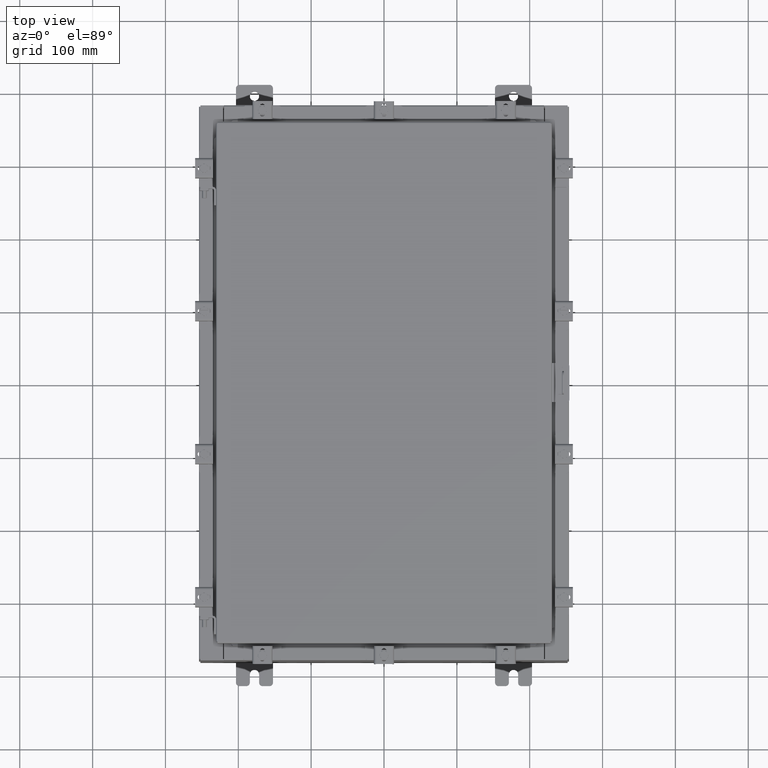
[diagram: clean part render]
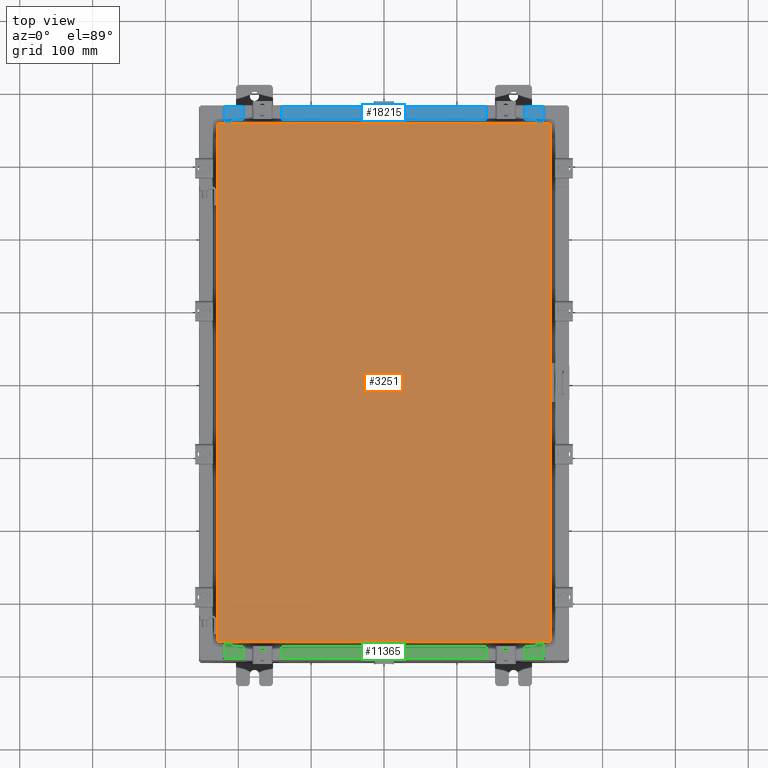
[diagram: same view with three faces highlighted in distinct colors, each labeled with its STEP entity id]
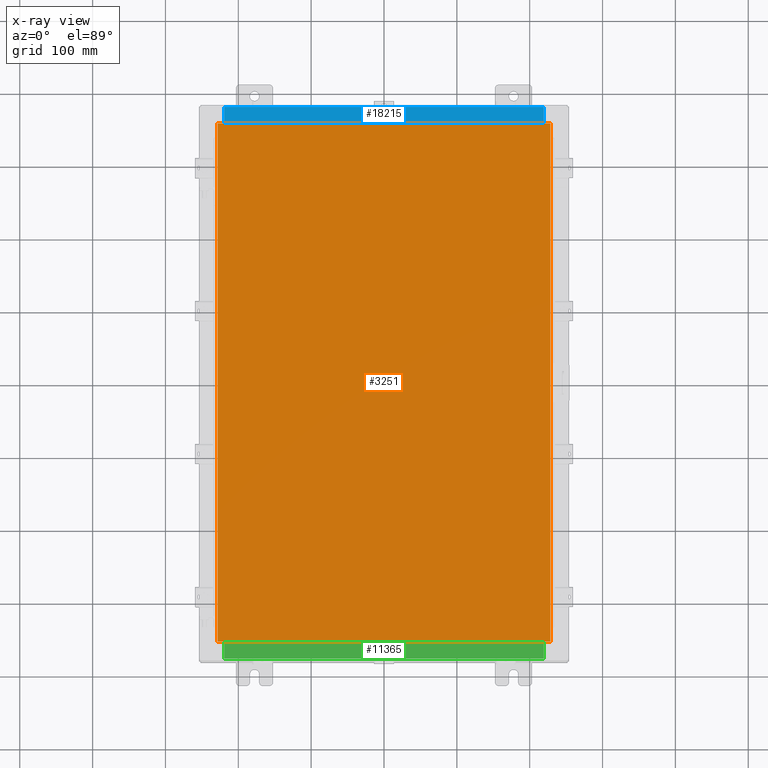
[diagram: x-ray of the same camera — body ghosted, the three highlighted faces saturated]
A machine part, top view with three faces highlighted in distinct colors.
The next image is the same camera in x-ray (body ghosted, the three faces saturated) — at least one of them is partly hidden behind the body in this view.
Their STEP definitions:

[orange] entity #3251 — the highlighted planar face has unit normal (0, 0, -1).
#159 = VERTEX_POINT ( 'NONE', #6784 ) ;
#232 = ORIENTED_EDGE ( 'NONE', *, *, #4258, .T. ) ;
#845 = CARTESIAN_POINT ( 'NONE',  ( -8.990299999999996000, -14.00629999999999800, 1.980589795406590900E-015 ) ) ;
#1777 = CARTESIAN_POINT ( 'NONE',  ( 8.990300000000001300, 14.00629999999999800, -2.048885995248197400E-016 ) ) ;
#2594 = VECTOR ( 'NONE', #5618, 39.37007874015748100 ) ;
#3251 = ADVANCED_FACE ( 'NONE', ( #13918 ), #3923, .F. ) ;
#3428 = EDGE_CURVE ( 'NONE', #18400, #9069, #6907, .T. ) ;
#3923 = PLANE ( 'NONE',  #8067 ) ;
#4258 = EDGE_CURVE ( 'NONE', #159, #18400, #10675, .T. ) ;
#5618 = DIRECTION ( 'NONE',  ( 0.0000000000000000000, 1.000000000000000000, 0.0000000000000000000 ) ) ;
#6090 = CARTESIAN_POINT ( 'NONE',  ( -8.990299999999997700, 14.00630000000000100, -2.048885995248197400E-016 ) ) ;
#6308 = DIRECTION ( 'NONE',  ( 1.000000000000000000, -0.0000000000000000000, -0.0000000000000000000 ) ) ;
#6784 = CARTESIAN_POINT ( 'NONE',  ( -8.990299999999997700, 14.00630000000000100, -2.048885995248197400E-016 ) ) ;
#6878 = VECTOR ( 'NONE', #17832, 39.37007874015748100 ) ;
#6907 = LINE ( 'NONE', #16938, #20657 ) ;
#7417 = CARTESIAN_POINT ( 'NONE',  ( 8.990300000000001300, -14.00629999999999800, -2.048885995248197400E-016 ) ) ;
#7589 = CARTESIAN_POINT ( 'NONE',  ( 0.0000000000000000000, 0.0000000000000000000, 0.0000000000000000000 ) ) ;
#7889 = LINE ( 'NONE', #7417, #2594 ) ;
#8067 = AXIS2_PLACEMENT_3D ( 'NONE', #7589, #20108, #9384 ) ;
#9069 = VERTEX_POINT ( 'NONE', #13063 ) ;
#9384 = DIRECTION ( 'NONE',  ( -1.000000000000000000, 0.0000000000000000000, -0.0000000000000000000 ) ) ;
#10675 = LINE ( 'NONE', #6090, #16539 ) ;
#11436 = EDGE_CURVE ( 'NONE', #21253, #159, #11622, .T. ) ;
#11561 = ORIENTED_EDGE ( 'NONE', *, *, #3428, .T. ) ;
#11622 = LINE ( 'NONE', #1777, #6878 ) ;
#13063 = CARTESIAN_POINT ( 'NONE',  ( 8.990300000000001300, -14.00629999999999800, -2.048885995248197400E-016 ) ) ;
#13918 = FACE_OUTER_BOUND ( 'NONE', #18198, .T. ) ;
#14626 = EDGE_CURVE ( 'NONE', #9069, #21253, #7889, .T. ) ;
#16539 = VECTOR ( 'NONE', #18627, 39.37007874015748100 ) ;
#16938 = CARTESIAN_POINT ( 'NONE',  ( -8.990299999999996000, -14.00629999999999800, 1.963515745446189200E-015 ) ) ;
#17832 = DIRECTION ( 'NONE',  ( -1.000000000000000000, -0.0000000000000000000, -0.0000000000000000000 ) ) ;
#17890 = CARTESIAN_POINT ( 'NONE',  ( 8.990300000000001300, 14.00629999999999800, -2.048885995248197400E-016 ) ) ;
#18102 = ORIENTED_EDGE ( 'NONE', *, *, #14626, .T. ) ;
#18198 = EDGE_LOOP ( 'NONE', ( #11561, #18102, #19416, #232 ) ) ;
#18400 = VERTEX_POINT ( 'NONE', #845 ) ;
#18627 = DIRECTION ( 'NONE',  ( 0.0000000000000000000, -1.000000000000000000, 0.0000000000000000000 ) ) ;
#19416 = ORIENTED_EDGE ( 'NONE', *, *, #11436, .T. ) ;
#20108 = DIRECTION ( 'NONE',  ( 0.0000000000000000000, 0.0000000000000000000, -1.000000000000000000 ) ) ;
#20657 = VECTOR ( 'NONE', #6308, 39.37007874015748100 ) ;
#21253 = VERTEX_POINT ( 'NONE', #17890 ) ;

[blue] entity #18215 — the highlighted planar face has unit normal (0, 0, 1).
#403 = EDGE_CURVE ( 'NONE', #12069, #13381, #17631, .T. ) ;
#497 = DIRECTION ( 'NONE',  ( -0.0000000000000000000, 1.000000000000000000, -3.566381192773190000E-015 ) ) ;
#5246 = DIRECTION ( 'NONE',  ( -0.0000000000000000000, -1.000000000000000000, 3.566381192773190000E-015 ) ) ;
#5609 = DIRECTION ( 'NONE',  ( 0.0000000000000000000, 3.566381192773190000E-015, 1.000000000000000000 ) ) ;
#7124 = FACE_OUTER_BOUND ( 'NONE', #13557, .T. ) ;
#7393 = CARTESIAN_POINT ( 'NONE',  ( 8.637200000000000000, -1.287299999999999900, 4.000000000000004400 ) ) ;
#7401 = ORIENTED_EDGE ( 'NONE', *, *, #403, .T. ) ;
#8126 = VECTOR ( 'NONE', #19194, 39.37007874015748100 ) ;
#8760 = CARTESIAN_POINT ( 'NONE',  ( 8.637200000000000000, -0.08769999999999965300, 4.000000000000000000 ) ) ;
#8863 = ORIENTED_EDGE ( 'NONE', *, *, #19227, .F. ) ;
#9106 = LINE ( 'NONE', #14128, #13837 ) ;
#10001 = DIRECTION ( 'NONE',  ( -1.000000000000000000, 0.0000000000000000000, 0.0000000000000000000 ) ) ;
#11074 = VECTOR ( 'NONE', #497, 39.37007874015748100 ) ;
#12069 = VERTEX_POINT ( 'NONE', #8760 ) ;
#12481 = EDGE_CURVE ( 'NONE', #12069, #21975, #9106, .T. ) ;
#13122 = AXIS2_PLACEMENT_3D ( 'NONE', #14579, #5609, #18177 ) ;
#13381 = VERTEX_POINT ( 'NONE', #16419 ) ;
#13557 = EDGE_LOOP ( 'NONE', ( #15873, #8863, #22853, #7401 ) ) ;
#13603 = CARTESIAN_POINT ( 'NONE',  ( 8.637200000000000000, -1.287299999999999900, 4.000000000000003600 ) ) ;
#13837 = VECTOR ( 'NONE', #5246, 39.37007874015748100 ) ;
#14128 = CARTESIAN_POINT ( 'NONE',  ( 8.637200000000000000, -1.300299999999999800, 4.000000000000004400 ) ) ;
#14579 = CARTESIAN_POINT ( 'NONE',  ( 0.0000000000000000000, 1.425992975200418500E-014, 4.000000000000000000 ) ) ;
#15614 = EDGE_CURVE ( 'NONE', #20940, #13381, #21206, .T. ) ;
#15873 = ORIENTED_EDGE ( 'NONE', *, *, #15614, .F. ) ;
#16384 = PLANE ( 'NONE',  #13122 ) ;
#16419 = CARTESIAN_POINT ( 'NONE',  ( -8.637200000000000000, -0.08770000000000000000, 4.000000000000000000 ) ) ;
#17631 = LINE ( 'NONE', #18882, #8126 ) ;
#17704 = VECTOR ( 'NONE', #10001, 39.37007874015748100 ) ;
#18177 = DIRECTION ( 'NONE',  ( 0.0000000000000000000, -1.000000000000000000, 3.566381192773190000E-015 ) ) ;
#18215 = ADVANCED_FACE ( 'NONE', ( #7124 ), #16384, .T. ) ;
#18882 = CARTESIAN_POINT ( 'NONE',  ( -2.773851121247567100E-018, -0.08770000000000000000, 4.000000000000000900 ) ) ;
#19194 = DIRECTION ( 'NONE',  ( -1.000000000000000000, 3.162886113166609200E-017, -1.128005754888089100E-031 ) ) ;
#19227 = EDGE_CURVE ( 'NONE', #21975, #20940, #19412, .T. ) ;
#19412 = LINE ( 'NONE', #13603, #17704 ) ;
#20661 = CARTESIAN_POINT ( 'NONE',  ( -8.637200000000000000, -1.287299999999999200, 4.000000000000004400 ) ) ;
#20940 = VERTEX_POINT ( 'NONE', #20661 ) ;
#21206 = LINE ( 'NONE', #21923, #11074 ) ;
#21923 = CARTESIAN_POINT ( 'NONE',  ( -8.637200000000000000, -0.07469999999999973900, 4.000000000000000000 ) ) ;
#21975 = VERTEX_POINT ( 'NONE', #7393 ) ;
#22853 = ORIENTED_EDGE ( 'NONE', *, *, #12481, .F. ) ;

[green] entity #11365 — the highlighted planar face has unit normal (-0, -0, 1).
#262 = CARTESIAN_POINT ( 'NONE',  ( 8.637200000000000000, -1.300299999999999800, 4.000000000000004400 ) ) ;
#277 = CARTESIAN_POINT ( 'NONE',  ( 8.637200000000000000, -0.08769999999999965300, 4.000000000000000000 ) ) ;
#408 = VERTEX_POINT ( 'NONE', #19385 ) ;
#907 = ORIENTED_EDGE ( 'NONE', *, *, #13726, .T. ) ;
#1550 = PLANE ( 'NONE',  #9088 ) ;
#2616 = CARTESIAN_POINT ( 'NONE',  ( 8.637200000000000000, -1.287299999999999900, 4.000000000000004400 ) ) ;
#3288 = FACE_OUTER_BOUND ( 'NONE', #21001, .T. ) ;
#3326 = DIRECTION ( 'NONE',  ( 0.0000000000000000000, 3.566381192773190000E-015, 1.000000000000000000 ) ) ;
#5146 = LINE ( 'NONE', #17257, #18269 ) ;
#5868 = VERTEX_POINT ( 'NONE', #22977 ) ;
#6796 = LINE ( 'NONE', #15250, #19971 ) ;
#7233 = DIRECTION ( 'NONE',  ( -0.0000000000000000000, 1.000000000000000000, -3.566381192773190000E-015 ) ) ;
#9088 = AXIS2_PLACEMENT_3D ( 'NONE', #12195, #3326, #15806 ) ;
#9878 = ORIENTED_EDGE ( 'NONE', *, *, #21350, .F. ) ;
#10349 = ORIENTED_EDGE ( 'NONE', *, *, #13658, .F. ) ;
#11365 = ADVANCED_FACE ( 'NONE', ( #3288 ), #1550, .T. ) ;
#11587 = LINE ( 'NONE', #19776, #21723 ) ;
#11710 = DIRECTION ( 'NONE',  ( -1.000000000000000000, 0.0000000000000000000, 0.0000000000000000000 ) ) ;
#11761 = VERTEX_POINT ( 'NONE', #2616 ) ;
#12195 = CARTESIAN_POINT ( 'NONE',  ( 0.0000000000000000000, 1.425992975200418500E-014, 4.000000000000000000 ) ) ;
#12569 = EDGE_CURVE ( 'NONE', #408, #5868, #11587, .T. ) ;
#13658 = EDGE_CURVE ( 'NONE', #11761, #408, #6796, .T. ) ;
#13726 = EDGE_CURVE ( 'NONE', #19578, #5868, #5146, .T. ) ;
#13968 = VECTOR ( 'NONE', #21692, 39.37007874015748100 ) ;
#14522 = LINE ( 'NONE', #262, #13968 ) ;
#15250 = CARTESIAN_POINT ( 'NONE',  ( 8.637200000000000000, -1.287299999999999900, 4.000000000000003600 ) ) ;
#15806 = DIRECTION ( 'NONE',  ( 0.0000000000000000000, -1.000000000000000000, 3.566381192773190000E-015 ) ) ;
#17257 = CARTESIAN_POINT ( 'NONE',  ( -2.773851121247567100E-018, -0.08770000000000000000, 4.000000000000000900 ) ) ;
#18269 = VECTOR ( 'NONE', #19092, 39.37007874015748100 ) ;
#19023 = ORIENTED_EDGE ( 'NONE', *, *, #12569, .F. ) ;
#19092 = DIRECTION ( 'NONE',  ( -1.000000000000000000, 3.162886113166609200E-017, -1.128005754888089100E-031 ) ) ;
#19385 = CARTESIAN_POINT ( 'NONE',  ( -8.637200000000000000, -1.287299999999999200, 4.000000000000004400 ) ) ;
#19578 = VERTEX_POINT ( 'NONE', #277 ) ;
#19776 = CARTESIAN_POINT ( 'NONE',  ( -8.637200000000000000, -0.07469999999999973900, 4.000000000000000000 ) ) ;
#19971 = VECTOR ( 'NONE', #11710, 39.37007874015748100 ) ;
#21001 = EDGE_LOOP ( 'NONE', ( #19023, #10349, #9878, #907 ) ) ;
#21350 = EDGE_CURVE ( 'NONE', #19578, #11761, #14522, .T. ) ;
#21692 = DIRECTION ( 'NONE',  ( -0.0000000000000000000, -1.000000000000000000, 3.566381192773190000E-015 ) ) ;
#21723 = VECTOR ( 'NONE', #7233, 39.37007874015748100 ) ;
#22977 = CARTESIAN_POINT ( 'NONE',  ( -8.637200000000000000, -0.08770000000000000000, 4.000000000000000000 ) ) ;